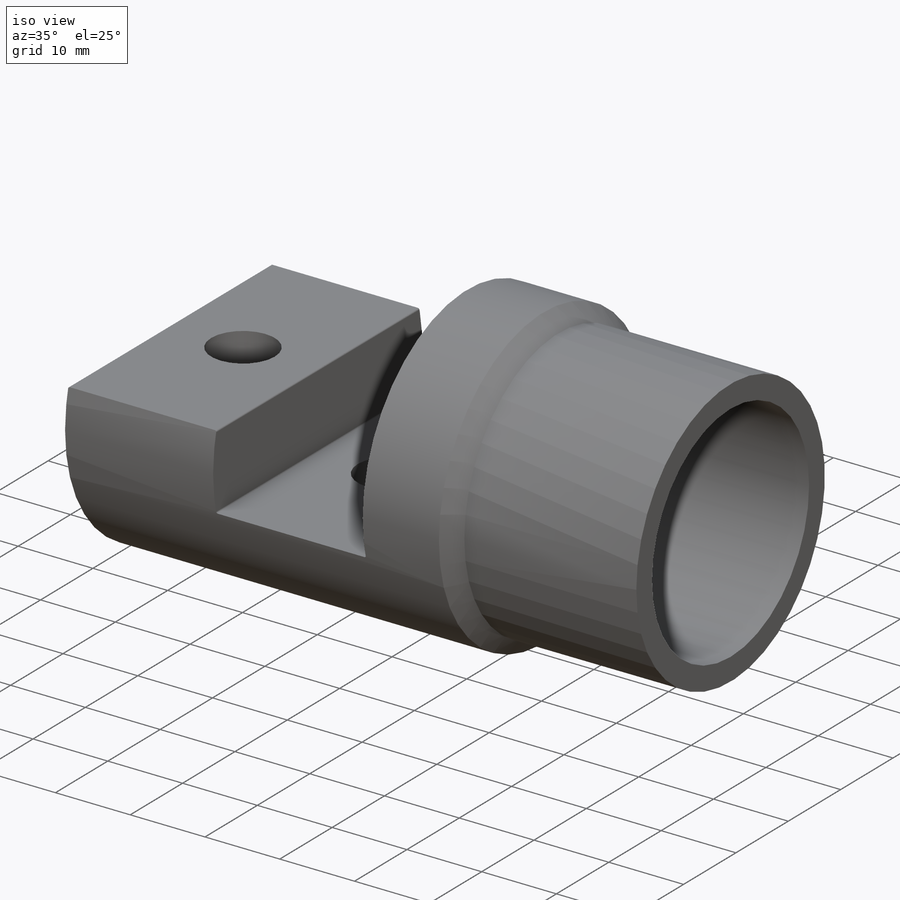
[diagram: iso view]
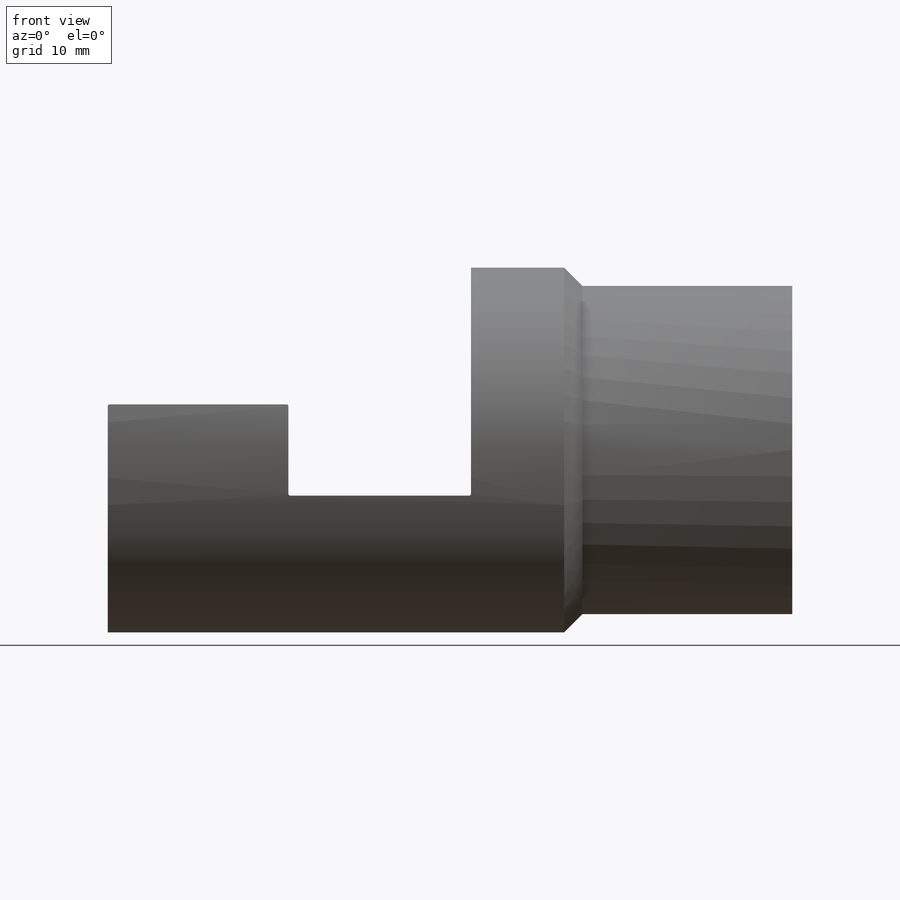
[diagram: front view]
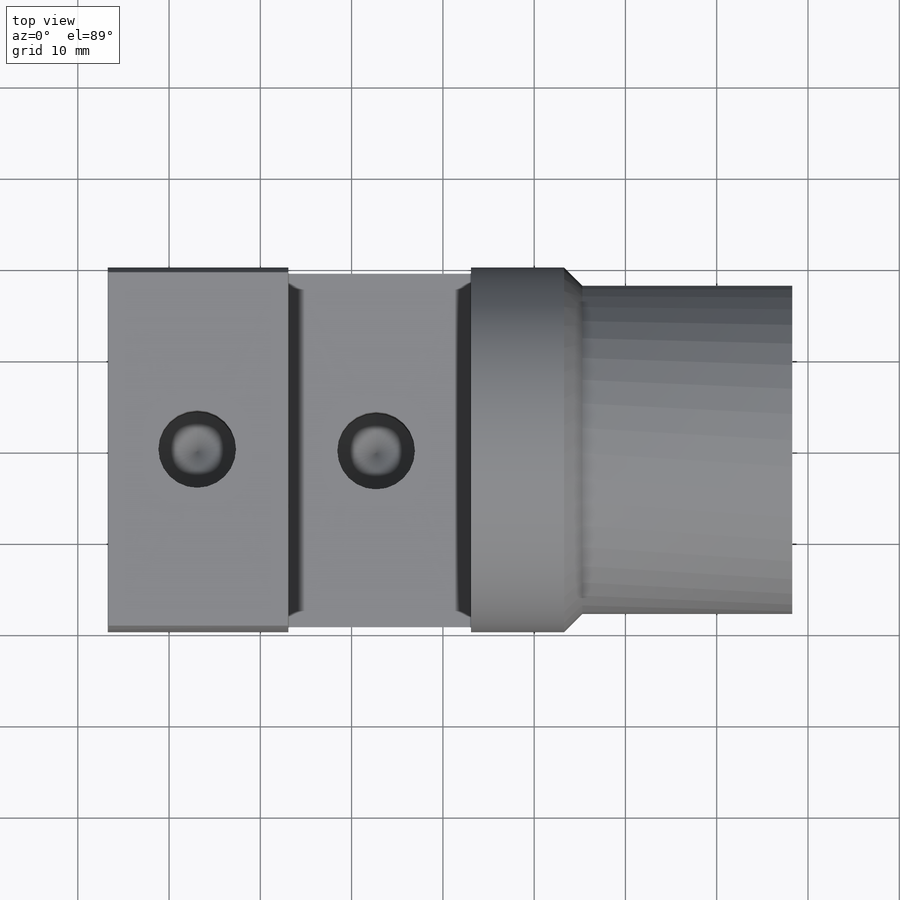
[diagram: top view]
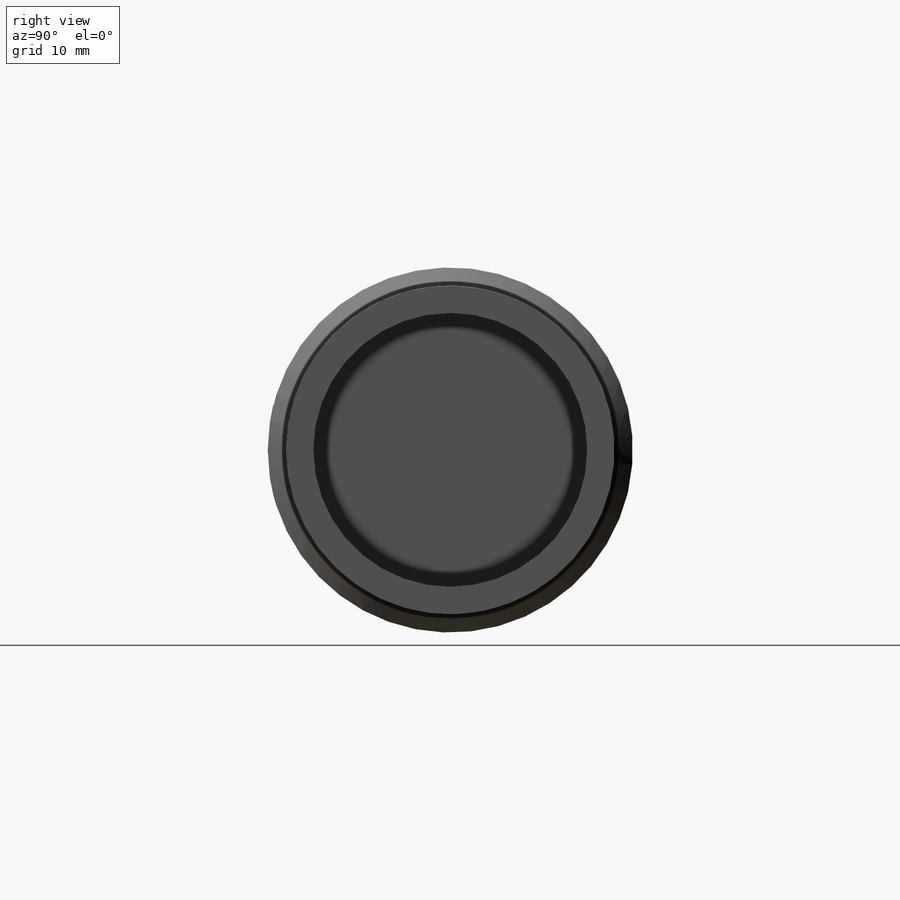
[diagram: right view]
SOLIDWORKS PART (.sldprt)
format: sldprt  version: not decoded by parser v0  size: 431,616 bytes
history: native  units: mm
features: sketch x5, plane x3, cut_extrude x2, material x1, revolve x1, chamfer x1, fillet x1, hole x1 (+9 scaffold rows collapsed)
feature tree (24):
  scaffold x9  (default folders/planes/origin — collapsed)
  material  "Matériau <non spécifié>"
  plane  "Plan de face"
  plane  "Plan de dessus"
  plane  "Plan de droite"
  sketch  "Esquisse1"  dims[D1=75.0mm D2=50.0mm D3=2.0mm D4=18.0mm]
  revolve  "Révolution1"  Angle=360deg
  sketch  "Esquisse2"  dims[c1.D1=19.8mm c1.D2=20.0mm c1.D3=~18.484792mm c1.D4=25.0mm c1.D5=~6.515208mm c2.D3=15.0mm c2.D4=25.0mm c2.D5=0.0mm]
  cut_extrude  "Enlèv. mat.-Extru.4"  Depth=40mm
  chamfer  "Chanfrein1"  Distance=2mm Angle=45deg
  fillet  "Congé2"  Radius=0.2mm
  hole  "Trou pour taraudage pour trou taraudé M10x1.51"  Diameter=8.5mm Depth=12mm
  sketch  "Esquisse3D1"  dims[c1.D1=9.8mm c1.D2=10.2mm c1.D3=~19.245916mm c1.D4=~19.245916mm c2.D3=19.35mm c2.D4=19.35mm]
  sketch  "Esquisse3"  dims[hole-wizard template sketch: 46 standard entries collapsed; hole parameters kept: c15.Diamètre du perçage=8.5mm c15.Profondeur du perçage=12.0mm c15.D3=~14.816244mm c15.Angle de pointe=118.0deg]
  sketch  "Esquisse3D2"  dims[c1.D1=30.0mm c1.D3=30.0mm c2.D3=30.0mm c2.D2=0.0mm c3.D3=~21.720595mm c3.D4=0.1mm c4.D3=~21.720595mm]
  cut_extrude  "Enlèv. mat.-Extru.16"  Depth=51.7mm
decode coverage: 11 of 11 modeling features carry decoded parameters
note: ~ marks probable driven/reference dimensions
note: suppression state not decoded; provenance and decode notes live in map.json
